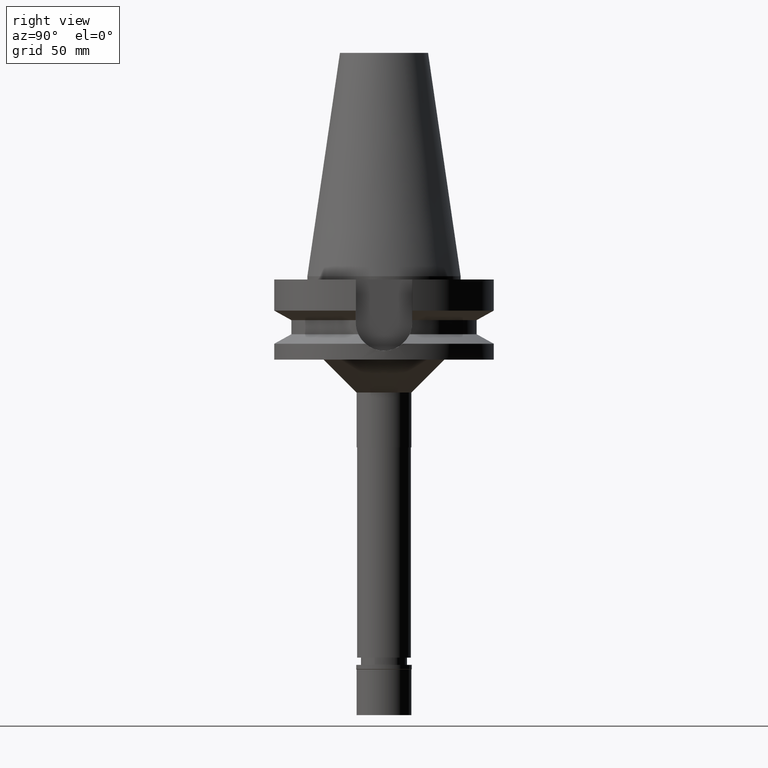
[diagram: clean part render]
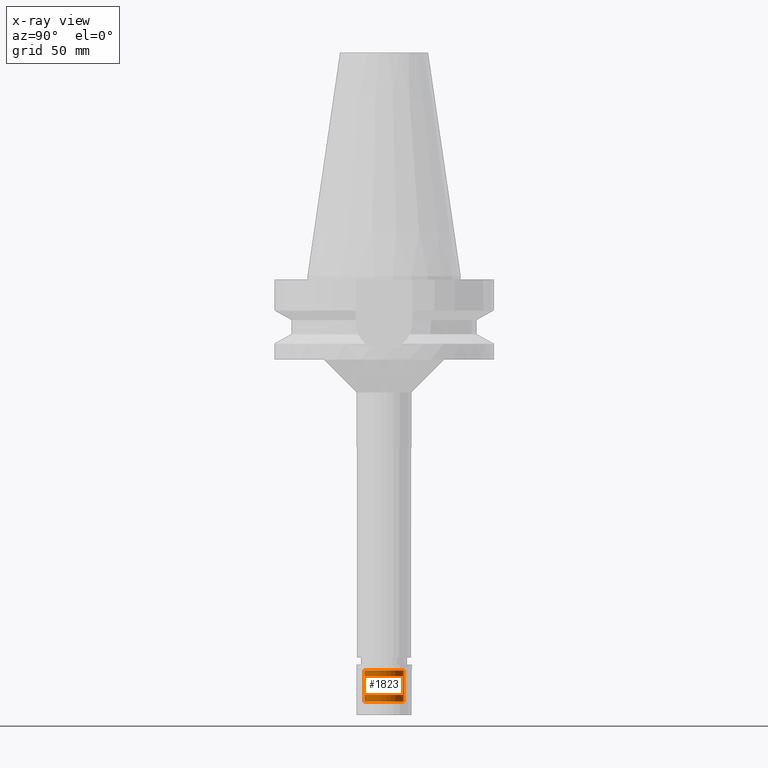
[diagram: x-ray — body ghosted, one internal face saturated and labeled with its STEP entity id]
A machine part, right view, then the same camera in x-ray: the body is ghosted and one INTERNAL B-rep face — a face not visible from any outside direction — is saturated and labeled: STEP entity #1823.
In plain terms, the highlighted cylindrical surface (edge-blend (fillet) strip) has radius 9 mm, axis along (0, 0, -1).
Its self-contained STEP definition (entity closure, byte-faithful):
#12 = CARTESIAN_POINT ( 'NONE',  ( 0.0000000000000000000, 9.000000000000000000, -16.69999999999999929 ) ) ;
#27 = LINE ( 'NONE', #12, #2958 ) ;
#49 = DIRECTION ( 'NONE',  ( 0.0000000000000000000, 0.0000000000000000000, 1.000000000000000000 ) ) ;
#264 = FACE_OUTER_BOUND ( 'NONE', #2240, .T. ) ;
#749 = ORIENTED_EDGE ( 'NONE', *, *, #1064, .T. ) ;
#804 = DIRECTION ( 'NONE',  ( 0.0000000000000000000, 0.0000000000000000000, 1.000000000000000000 ) ) ;
#889 = VERTEX_POINT ( 'NONE', #2781 ) ;
#980 = EDGE_CURVE ( 'NONE', #2019, #1996, #27, .T. ) ;
#1064 = EDGE_CURVE ( 'NONE', #889, #1996, #2073, .T. ) ;
#1307 = CIRCLE ( 'NONE', #2397, 9.000000000000000000 ) ;
#1365 = CARTESIAN_POINT ( 'NONE',  ( 0.0000000000000000000, 0.0000000000000000000, -2.500000000000000000 ) ) ;
#1416 = CARTESIAN_POINT ( 'NONE',  ( 0.0000000000000000000, 9.000000000000000000, -2.500000000000000000 ) ) ;
#1436 = VECTOR ( 'NONE', #804, 1000.000000000000000 ) ;
#1731 = ORIENTED_EDGE ( 'NONE', *, *, #980, .F. ) ;
#1786 = CARTESIAN_POINT ( 'NONE',  ( 0.0000000000000000000, 0.0000000000000000000, 0.0000000000000000000 ) ) ;
#1806 = DIRECTION ( 'NONE',  ( 0.0000000000000000000, -1.000000000000000000, 0.0000000000000000000 ) ) ;
#1823 = ADVANCED_FACE ( 'NONE', ( #264 ), #2237, .F. ) ;
#1841 = LINE ( 'NONE', #2600, #1436 ) ;
#1855 = EDGE_CURVE ( 'NONE', #2019, #1912, #1307, .T. ) ;
#1889 = ORIENTED_EDGE ( 'NONE', *, *, #2982, .T. ) ;
#1912 = VERTEX_POINT ( 'NONE', #2851 ) ;
#1996 = VERTEX_POINT ( 'NONE', #1416 ) ;
#2019 = VERTEX_POINT ( 'NONE', #2635 ) ;
#2073 = CIRCLE ( 'NONE', #2962, 9.000000000000000000 ) ;
#2226 = ORIENTED_EDGE ( 'NONE', *, *, #1855, .T. ) ;
#2237 = CYLINDRICAL_SURFACE ( 'NONE', #2750, 9.000000000000000000 ) ;
#2240 = EDGE_LOOP ( 'NONE', ( #2226, #1889, #749, #1731 ) ) ;
#2243 = DIRECTION ( 'NONE',  ( 0.0000000000000000000, 0.0000000000000000000, 1.000000000000000000 ) ) ;
#2367 = DIRECTION ( 'NONE',  ( 0.0000000000000000000, 1.000000000000000000, 0.0000000000000000000 ) ) ;
#2397 = AXIS2_PLACEMENT_3D ( 'NONE', #2798, #2620, #2367 ) ;
#2600 = CARTESIAN_POINT ( 'NONE',  ( 0.0000000000000000000, -9.000000000000000000, -16.69999999999999929 ) ) ;
#2620 = DIRECTION ( 'NONE',  ( 0.0000000000000000000, 0.0000000000000000000, -1.000000000000000000 ) ) ;
#2635 = CARTESIAN_POINT ( 'NONE',  ( 0.0000000000000000000, 9.000000000000000000, -16.69999999999999929 ) ) ;
#2721 = DIRECTION ( 'NONE',  ( 0.0000000000000000000, -1.000000000000000000, 0.0000000000000000000 ) ) ;
#2750 = AXIS2_PLACEMENT_3D ( 'NONE', #1786, #3207, #2721 ) ;
#2781 = CARTESIAN_POINT ( 'NONE',  ( 0.0000000000000000000, -9.000000000000000000, -2.500000000000000000 ) ) ;
#2798 = CARTESIAN_POINT ( 'NONE',  ( 0.0000000000000000000, 0.0000000000000000000, -16.69999999999999929 ) ) ;
#2851 = CARTESIAN_POINT ( 'NONE',  ( 0.0000000000000000000, -9.000000000000000000, -16.69999999999999929 ) ) ;
#2958 = VECTOR ( 'NONE', #2243, 1000.000000000000000 ) ;
#2962 = AXIS2_PLACEMENT_3D ( 'NONE', #1365, #49, #1806 ) ;
#2982 = EDGE_CURVE ( 'NONE', #1912, #889, #1841, .T. ) ;
#3207 = DIRECTION ( 'NONE',  ( 0.0000000000000000000, 0.0000000000000000000, -1.000000000000000000 ) ) ;